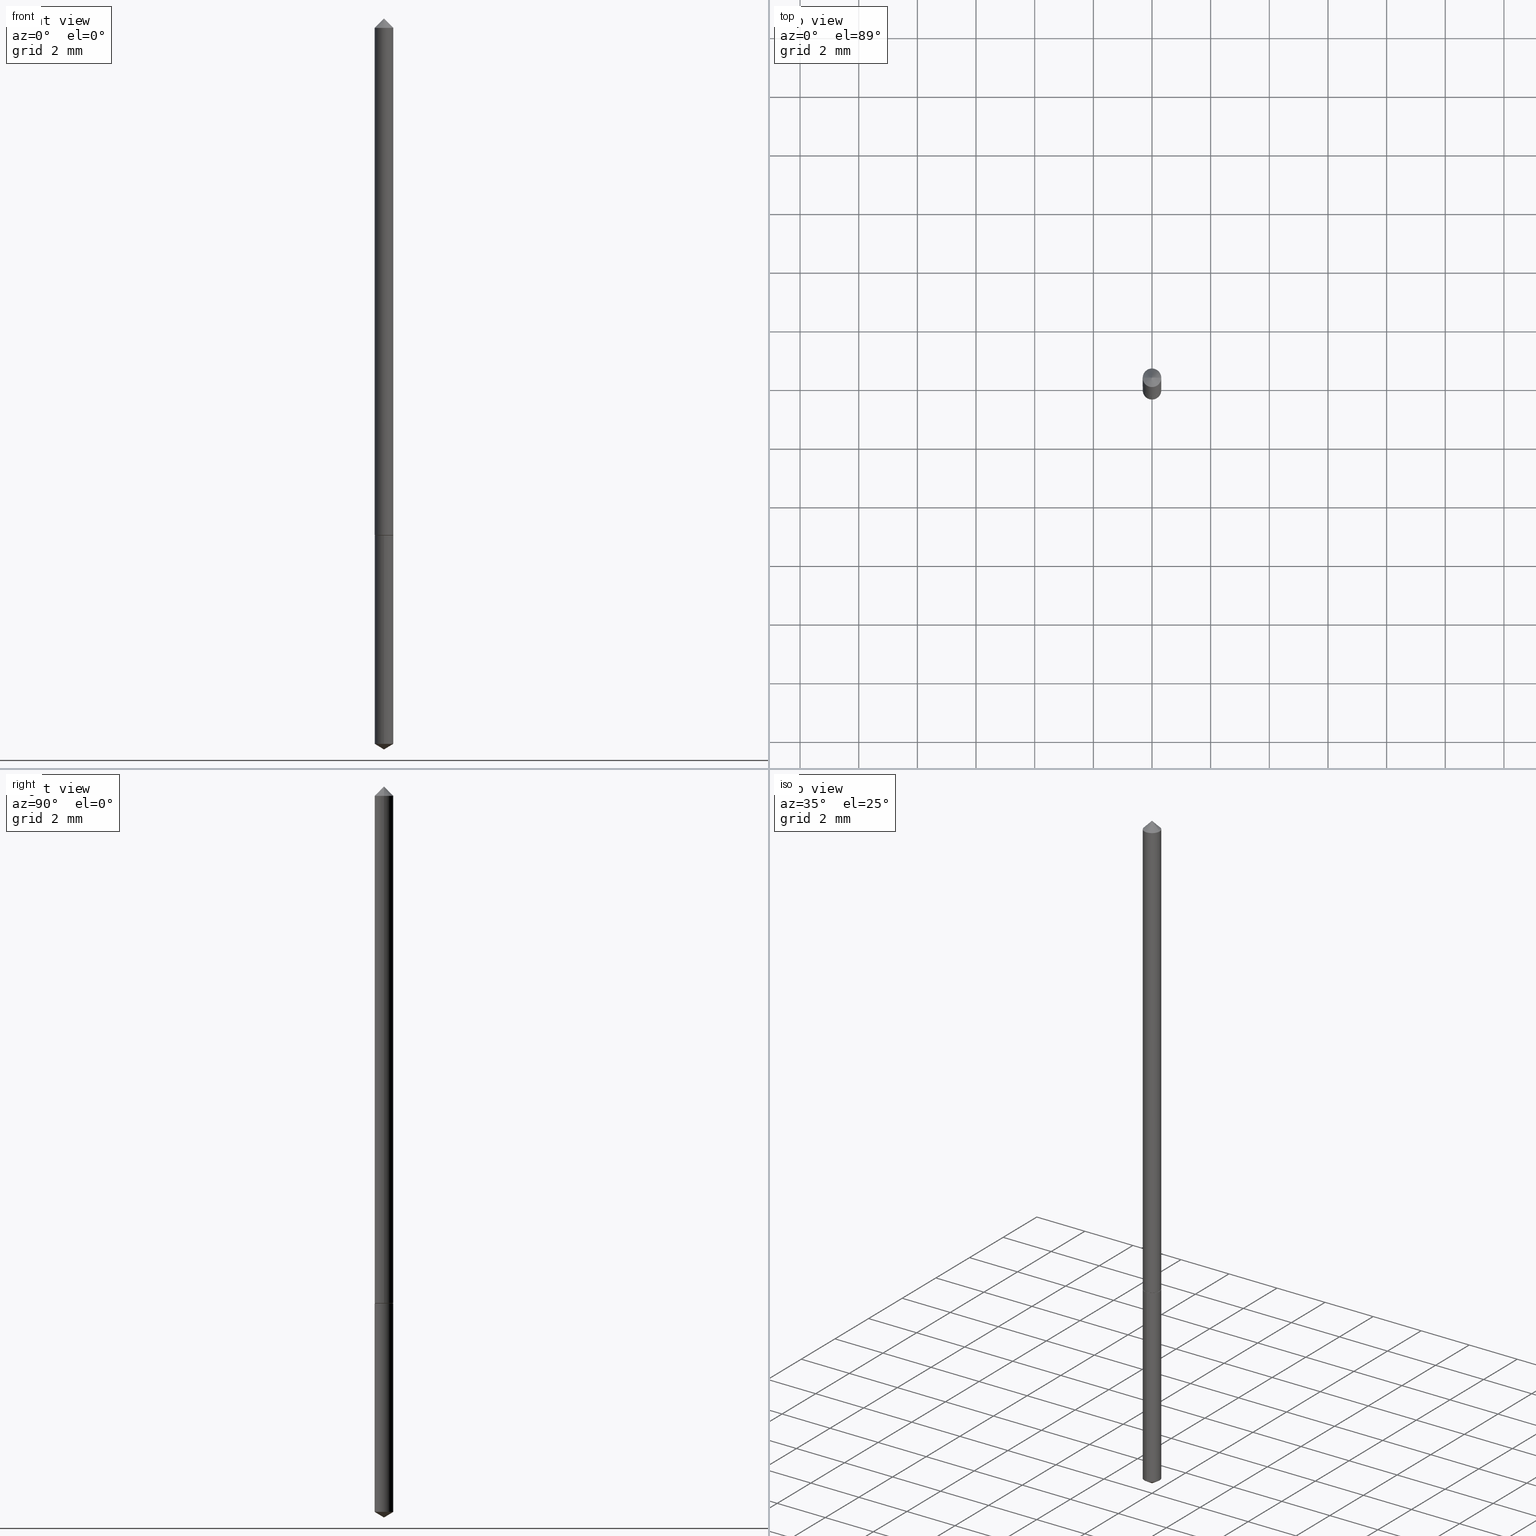
[diagram: canonical four-view strip — front | top / right | iso, engineering-drawing reading convention]
A machine part, canonical four-view strip (front | top / right | iso — engineering-drawing reading convention). The complete STEP part file that produces these views, byte-faithful:
ISO-10303-21;
HEADER;
FILE_DESCRIPTION (( 'STEP AP203' ),
    '1' );
FILE_NAME ('57085.STEP',
    '2024-04-22T21:54:45',
    ( '' ),
    ( '' ),
    'SwSTEP 2.0',
    'SolidWorks 2023',
    '' );
FILE_SCHEMA (( 'CONFIG_CONTROL_DESIGN' ));
ENDSEC;

DATA;
#1 = DATE_TIME_ROLE ( 'classification_date' ) ;
#2 = MECHANICAL_CONTEXT ( 'NONE', #351, 'mechanical' ) ;
#3 = ORIENTED_EDGE ( 'NONE', *, *, #361, .F. ) ;
#4 = VECTOR ( 'NONE', #259, 39.37007874015748143 ) ;
#5 = DIRECTION ( 'NONE',  ( -2.445468806185136597E-29, 3.491481338843145583E-15, 1.000000000000000000 ) ) ;
#6 = CARTESIAN_POINT ( 'NONE',  ( 8.881784197002994473E-17, 0.01249999999999751310, -0.7125000000000000222 ) ) ;
#7 = CARTESIAN_POINT ( 'NONE',  ( 1.741173790003817192E-29, -2.485934713256319295E-15, -0.7119999999999999662 ) ) ;
#8 = CYLINDRICAL_SURFACE ( 'NONE', #153, 0.01250000000000000069 ) ;
#9 = DIRECTION ( 'NONE',  ( -2.445468806185136597E-29, 3.491481338843145583E-15, 1.000000000000000000 ) ) ;
#10 = DIRECTION ( 'NONE',  ( 6.090539988449805257E-15, 0.8571673007021175517, 0.5150380749100452737 ) ) ;
#11 = CARTESIAN_POINT ( 'NONE',  ( 0.01250000000000000590, -1.963958253099273852E-16, -0.03125000000000020123 ) ) ;
#12 = ORIENTED_EDGE ( 'NONE', *, *, #353, .T. ) ;
#13 = VERTEX_POINT ( 'NONE', #296 ) ;
#14 = CIRCLE ( 'NONE', #107, 0.01250000000000000590 ) ;
#15 = ADVANCED_FACE ( 'NONE', ( #29 ), #49, .F. ) ;
#16 = EDGE_LOOP ( 'NONE', ( #73, #154 ) ) ;
#17 = FACE_OUTER_BOUND ( 'NONE', #192, .T. ) ;
#18 = APPLICATION_PROTOCOL_DEFINITION ( 'international standard', 'config_control_design', 1994, #351 ) ;
#19 = ORIENTED_EDGE ( 'NONE', *, *, #164, .T. ) ;
#20 = VECTOR ( 'NONE', #58, 39.37007874015748143 ) ;
#21 = CARTESIAN_POINT ( 'NONE',  ( 1.742396524406909713E-29, -2.487680453925741193E-15, -0.7125000000000000222 ) ) ;
#22 = ORIENTED_EDGE ( 'NONE', *, *, #164, .F. ) ;
#23 = DIRECTION ( 'NONE',  ( 2.445468806185136597E-29, -3.491481338843145583E-15, -1.000000000000000000 ) ) ;
#24 = ADVANCED_FACE ( 'NONE', ( #17 ), #129, .T. ) ;
#25 = DIRECTION ( 'NONE',  ( -2.445468806185136597E-29, 3.491481338843145583E-15, 1.000000000000000000 ) ) ;
#26 = ORIENTED_EDGE ( 'NONE', *, *, #101, .F. ) ;
#27 = FACE_OUTER_BOUND ( 'NONE', #175, .T. ) ;
#28 = APPROVAL ( #138, 'UNSPECIFIED' ) ;
#29 = FACE_OUTER_BOUND ( 'NONE', #16, .T. ) ;
#30 = AXIS2_PLACEMENT_3D ( 'NONE', #274, #23, #133 ) ;
#31 = DESIGN_CONTEXT ( 'detailed design', #197, 'design' ) ;
#32 = CC_DESIGN_DATE_AND_TIME_ASSIGNMENT ( #227, #283, ( #363 ) ) ;
#33 = UNCERTAINTY_MEASURE_WITH_UNIT (LENGTH_MEASURE( 1.000000000000000082E-05 ), #104, 'distance_accuracy_value', 'NONE');
#34 = ORGANIZATION ( 'UNSPECIFIED', 'UNSPECIFIED', '' ) ;
#35 = DIRECTION ( 'NONE',  ( -2.445468806185136597E-29, 3.491481338843145583E-15, 1.000000000000000000 ) ) ;
#36 = DIRECTION ( 'NONE',  ( -2.445488057353773140E-29, 3.491453770073949474E-15, 1.000000000000000000 ) ) ;
#37 = CALENDAR_DATE ( 2024, 22, 4 ) ;
#38 = LINE ( 'NONE', #42, #146 ) ;
#39 = CARTESIAN_POINT ( 'NONE',  ( 1.741173790003817192E-29, -2.485934713256319295E-15, -0.7119999999999999662 ) ) ;
#40 = DATE_AND_TIME ( #307, #83 ) ;
#41 = CIRCLE ( 'NONE', #285, 0.01250000000000008916 ) ;
#42 = CARTESIAN_POINT ( 'NONE',  ( 2.445460624438465940E-29, -3.491493055570053475E-15, -1.000000000000000000 ) ) ;
#43 = LINE ( 'NONE', #260, #263 ) ;
#44 = EDGE_CURVE ( 'NONE', #360, #143, #221, .T. ) ;
#45 = ORIENTED_EDGE ( 'NONE', *, *, #277, .T. ) ;
#46 = APPLICATION_PROTOCOL_DEFINITION ( 'international standard', 'config_control_design', 1994, #197 ) ;
#47 = DATE_AND_TIME ( #289, #320 ) ;
#48 = CONICAL_SURFACE ( 'NONE', #343, 0.01250000000000008916, 0.7853981633973970977 ) ;
#49 = PLANE ( 'NONE',  #302 ) ;
#50 = DIRECTION ( 'NONE',  ( -2.438088387897960049E-29, 3.491481338843145188E-15, 1.000000000000000000 ) ) ;
#51 = FACE_OUTER_BOUND ( 'NONE', #157, .T. ) ;
#52 = DIRECTION ( 'NONE',  ( -2.445468806185136877E-29, 3.491481338843145188E-15, 1.000000000000000000 ) ) ;
#53 = CARTESIAN_POINT ( 'NONE',  ( 0.000000000000000000, 0.000000000000000000, 0.000000000000000000 ) ) ;
#54 = AXIS2_PLACEMENT_3D ( 'NONE', #235, #90, #204 ) ;
#55 = EDGE_CURVE ( 'NONE', #13, #127, #160, .T. ) ;
#56 = AXIS2_PLACEMENT_3D ( 'NONE', #253, #9, #86 ) ;
#57 = APPROVAL_PERSON_ORGANIZATION ( #311, #310, #150 ) ;
#58 = DIRECTION ( 'NONE',  ( -2.445488057353773140E-29, 3.491453770073949080E-15, 1.000000000000000000 ) ) ;
#59 = ORIENTED_EDGE ( 'NONE', *, *, #44, .F. ) ;
#60 = APPROVAL_ROLE ( '' ) ;
#61 = CARTESIAN_POINT ( 'NONE',  ( -8.728703347106090499E-17, -0.01250000000000249002, -0.7125000000000000222 ) ) ;
#62 = PRODUCT_RELATED_PRODUCT_CATEGORY ( 'detail', '', ( #209 ) ) ;
#63 = LINE ( 'NONE', #6, #20 ) ;
#64 = ORIENTED_EDGE ( 'NONE', *, *, #81, .T. ) ;
#65 = VECTOR ( 'NONE', #287, 39.37007874015748143 ) ;
#66 = ORIENTED_EDGE ( 'NONE', *, *, #149, .F. ) ;
#67 = ORIENTED_EDGE ( 'NONE', *, *, #277, .F. ) ;
#68 = EDGE_CURVE ( 'NONE', #358, #143, #63, .T. ) ;
#69 = AXIS2_PLACEMENT_3D ( 'NONE', #270, #99, #266 ) ;
#70 = PLANE ( 'NONE',  #161 ) ;
#71 = DIRECTION ( 'NONE',  ( 1.000000000000000000, -6.982962677686266711E-15, 4.876176775795936353E-29 ) ) ;
#72 = FACE_OUTER_BOUND ( 'NONE', #297, .T. ) ;
#73 = ORIENTED_EDGE ( 'NONE', *, *, #44, .T. ) ;
#74 = PERSON_AND_ORGANIZATION_ROLE ( 'classification_officer' ) ;
#75 = FACE_OUTER_BOUND ( 'NONE', #299, .T. ) ;
#76 = ORIENTED_EDGE ( 'NONE', *, *, #120, .F. ) ;
#77 = CYLINDRICAL_SURFACE ( 'NONE', #318, 0.01250000000000000069 ) ;
#78 = EDGE_CURVE ( 'NONE', #103, #360, #348, .T. ) ;
#79 = AXIS2_PLACEMENT_3D ( 'NONE', #335, #126, #303 ) ;
#80 = EDGE_CURVE ( 'NONE', #322, #352, #229, .T. ) ;
#81 = EDGE_CURVE ( 'NONE', #215, #358, #43, .T. ) ;
#82 = CARTESIAN_POINT ( 'NONE',  ( -0.01250000000000004580, 8.881784197001284864E-17, -6.148668862818655174E-31 ) ) ;
#83 = LOCAL_TIME ( 17, 54, 45.00000000000000000, #174 ) ;
#84 = APPROVAL_PERSON_ORGANIZATION ( #226, #28, #249 ) ;
#85 = CARTESIAN_POINT ( 'NONE',  ( 8.881784197003679796E-17, 0.01249999999999653645, -0.9924892422621556243 ) ) ;
#86 = DIRECTION ( 'NONE',  ( 1.000000000000000000, -6.982962677686272233E-15, 0.000000000000000000 ) ) ;
#87 = EDGE_CURVE ( 'NONE', #358, #103, #105, .T. ) ;
#88 = LINE ( 'NONE', #255, #65 ) ;
#89 = CARTESIAN_POINT ( 'NONE',  ( 0.01250000000000008916, -2.573221746727398418E-15, -0.7119999999999999662 ) ) ;
#90 = DIRECTION ( 'NONE',  ( -2.445488057353773140E-29, 3.491453770073949474E-15, 1.000000000000000000 ) ) ;
#91 = DIRECTION ( 'NONE',  ( -2.445488057353773140E-29, 3.491453770073949474E-15, 1.000000000000000000 ) ) ;
#92 = VERTEX_POINT ( 'NONE', #11 ) ;
#93 = ORIENTED_EDGE ( 'NONE', *, *, #279, .T. ) ;
#94 = ORIENTED_EDGE ( 'NONE', *, *, #251, .F. ) ;
#95 = DIRECTION ( 'NONE',  ( -2.445468806185136597E-29, 3.491481338843145583E-15, 1.000000000000000000 ) ) ;
#96 = CLOSED_SHELL ( 'NONE', ( #156, #166, #219, #202, #324, #217, #170 ) ) ;
#97 = CONICAL_SURFACE ( 'NONE', #130, 0.01250000000000000590, 0.7853981633974449483 ) ;
#98 = CARTESIAN_POINT ( 'NONE',  ( 2.445488057353773421E-29, -3.491453770073949474E-15, -1.000000000000000000 ) ) ;
#99 = DIRECTION ( 'NONE',  ( -2.445488057353773140E-29, 3.491453770073949474E-15, 1.000000000000000000 ) ) ;
#100 = ORIENTED_EDGE ( 'NONE', *, *, #78, .F. ) ;
#101 = EDGE_CURVE ( 'NONE', #352, #92, #342, .T. ) ;
#102 = SHAPE_DEFINITION_REPRESENTATION ( #295, #250 ) ;
#103 = VERTEX_POINT ( 'NONE', #234 ) ;
#104 =( CONVERSION_BASED_UNIT ( 'INCH', #239 ) LENGTH_UNIT ( ) NAMED_UNIT ( #111 ) );
#105 = CIRCLE ( 'NONE', #54, 0.01250000000000000069 ) ;
#106 = CC_DESIGN_APPROVAL ( #310, ( #363 ) ) ;
#107 = AXIS2_PLACEMENT_3D ( 'NONE', #216, #317, #269 ) ;
#108 = APPROVAL_DATE_TIME ( #232, #310 ) ;
#109 = CARTESIAN_POINT ( 'NONE',  ( -0.01250000000000000590, -1.208703910577569624E-15, -0.03125000000000020123 ) ) ;
#110 = CARTESIAN_POINT ( 'NONE',  ( -8.728703347106090499E-17, -0.01250000000000249002, -0.7125000000000000222 ) ) ;
#111 = DIMENSIONAL_EXPONENTS ( 1.000000000000000000, 0.000000000000000000, 0.000000000000000000, 0.000000000000000000, 0.000000000000000000, 0.000000000000000000, 0.000000000000000000 ) ;
#112 = PERSON_AND_ORGANIZATION ( #163, #34 ) ;
#113 = CARTESIAN_POINT ( 'NONE',  ( 2.427106872546543744E-29, -3.465249949402092799E-15, -0.9924892422621556243 ) ) ;
#114 = AXIS2_PLACEMENT_3D ( 'NONE', #39, #330, #323 ) ;
#115 = FACE_OUTER_BOUND ( 'NONE', #292, .T. ) ;
#116 = COORDINATED_UNIVERSAL_TIME_OFFSET ( 5, 0, .BEHIND. ) ;
#117 = DIRECTION ( 'NONE',  ( -6.982962677686265133E-15, -1.000000000000000000, 0.000000000000000000 ) ) ;
#118 = DIRECTION ( 'NONE',  ( 1.000000000000000000, -6.982962677686266711E-15, 0.000000000000000000 ) ) ;
#119 = CARTESIAN_POINT ( 'NONE',  ( 0.01250000000000008916, -2.573221746727398418E-15, -0.7119999999999999662 ) ) ;
#120 = EDGE_CURVE ( 'NONE', #127, #322, #199, .T. ) ;
#121 = DIRECTION ( 'NONE',  ( -6.982962677686267499E-15, -1.000000000000000000, 3.468864327941540966E-15 ) ) ;
#122 = AXIS2_PLACEMENT_3D ( 'NONE', #309, #35, #151 ) ;
#123 = EDGE_CURVE ( 'NONE', #183, #92, #88, .T. ) ;
#124 = SECURITY_CLASSIFICATION_LEVEL ( 'unclassified' ) ;
#125 = ORIENTED_EDGE ( 'NONE', *, *, #353, .F. ) ;
#126 = DIRECTION ( 'NONE',  ( 0.000000000000000000, 0.000000000000000000, 1.000000000000000000 ) ) ;
#127 = VERTEX_POINT ( 'NONE', #261 ) ;
#128 = CC_DESIGN_DATE_AND_TIME_ASSIGNMENT ( #47, #1, ( #136 ) ) ;
#129 = CONICAL_SURFACE ( 'NONE', #355, 65.52281426576944057, 1.029744258676661417 ) ;
#130 = AXIS2_PLACEMENT_3D ( 'NONE', #241, #211, #359 ) ;
#131 = FACE_OUTER_BOUND ( 'NONE', #316, .T. ) ;
#132 = VERTEX_POINT ( 'NONE', #119 ) ;
#133 = DIRECTION ( 'NONE',  ( -1.000000000000000000, 6.982962677686266711E-15, 0.000000000000000000 ) ) ;
#134 = EDGE_LOOP ( 'NONE', ( #158, #276, #22, #66 ) ) ;
#135 = CARTESIAN_POINT ( 'NONE',  ( 1.742396524406909713E-29, -2.487680453925741193E-15, -0.7125000000000000222 ) ) ;
#136 = SECURITY_CLASSIFICATION ( '', '', #124 ) ;
#137 = CC_DESIGN_PERSON_AND_ORGANIZATION_ASSIGNMENT ( #265, #321, ( #201 ) ) ;
#138 = APPROVAL_STATUS ( 'not_yet_approved' ) ;
#139 = ORIENTED_EDGE ( 'NONE', *, *, #78, .T. ) ;
#140 = EDGE_CURVE ( 'NONE', #322, #132, #281, .T. ) ;
#141 = CARTESIAN_POINT ( 'NONE',  ( -0.01250000000000008916, -2.397116871286306299E-15, -0.7119999999999999662 ) ) ;
#142 = DIRECTION ( 'NONE',  ( -6.982962677686265133E-15, -1.000000000000000000, 0.000000000000000000 ) ) ;
#143 = VERTEX_POINT ( 'NONE', #238 ) ;
#144 = PERSON_AND_ORGANIZATION_ROLE ( 'creator' ) ;
#145 = LINE ( 'NONE', #89, #191 ) ;
#146 = VECTOR ( 'NONE', #179, 39.37007874015748854 ) ;
#147 = CARTESIAN_POINT ( 'NONE',  ( -0.01250000000000000590, -2.182175836777064042E-17, -0.03125000000000020123 ) ) ;
#148 = ORIENTED_EDGE ( 'NONE', *, *, #68, .F. ) ;
#149 = EDGE_CURVE ( 'NONE', #132, #92, #182, .T. ) ;
#150 = APPROVAL_ROLE ( '' ) ;
#151 = DIRECTION ( 'NONE',  ( 1.000000000000000000, -6.982962677686272233E-15, 0.000000000000000000 ) ) ;
#152 = APPROVAL ( #200, 'UNSPECIFIED' ) ;
#153 = AXIS2_PLACEMENT_3D ( 'NONE', #313, #91, #176 ) ;
#154 = ORIENTED_EDGE ( 'NONE', *, *, #251, .T. ) ;
#155 =( NAMED_UNIT ( * ) PLANE_ANGLE_UNIT ( ) SI_UNIT ( $, .RADIAN. ) );
#156 = ADVANCED_FACE ( 'NONE', ( #75 ), #97, .T. ) ;
#157 = EDGE_LOOP ( 'NONE', ( #186, #362, #242 ) ) ;
#158 = ORIENTED_EDGE ( 'NONE', *, *, #361, .T. ) ;
#159 = ORIENTED_EDGE ( 'NONE', *, *, #55, .T. ) ;
#160 = CIRCLE ( 'NONE', #56, 0.01200000000000010433 ) ;
#161 = AXIS2_PLACEMENT_3D ( 'NONE', #21, #50, #356 ) ;
#162 = ORIENTED_EDGE ( 'NONE', *, *, #101, .T. ) ;
#163 = PERSON ( 'UNSPECIFIED', 'UNSPECIFIED', 'UNSPECIFIED', ('UNSPECIFIED'), ('UNSPECIFIED'), ('UNSPECIFIED') ) ;
#164 = EDGE_CURVE ( 'NONE', #92, #352, #14, .T. ) ;
#165 = ORIENTED_EDGE ( 'NONE', *, *, #120, .T. ) ;
#166 = ADVANCED_FACE ( 'NONE', ( #354 ), #187, .T. ) ;
#167 = CONICAL_SURFACE ( 'NONE', #69, 65.52281426576944057, 1.029744258676661417 ) ;
#168 = LOCAL_TIME ( 17, 54, 45.00000000000000000, #196 ) ;
#169 =( GEOMETRIC_REPRESENTATION_CONTEXT ( 3 ) GLOBAL_UNCERTAINTY_ASSIGNED_CONTEXT ( ( #33 ) ) GLOBAL_UNIT_ASSIGNED_CONTEXT ( ( #104, #155, #218 ) ) REPRESENTATION_CONTEXT ( 'NONE', 'WORKASPACE' ) );
#170 = ADVANCED_FACE ( 'NONE', ( #27 ), #338, .T. ) ;
#171 = ORIENTED_EDGE ( 'NONE', *, *, #305, .F. ) ;
#172 = CARTESIAN_POINT ( 'NONE',  ( -0.01250000000000008916, -2.397116871286306299E-15, -0.7119999999999999662 ) ) ;
#173 = APPROVAL_STATUS ( 'not_yet_approved' ) ;
#174 = COORDINATED_UNIVERSAL_TIME_OFFSET ( 5, 0, .BEHIND. ) ;
#175 = EDGE_LOOP ( 'NONE', ( #294, #93, #162 ) ) ;
#176 = DIRECTION ( 'NONE',  ( -6.982962677686265133E-15, -1.000000000000000000, 0.000000000000000000 ) ) ;
#177 = DIRECTION ( 'NONE',  ( -2.445468806185136877E-29, 3.491481338843145188E-15, 1.000000000000000000 ) ) ;
#178 = CIRCLE ( 'NONE', #205, 0.01250000000000000069 ) ;
#179 = DIRECTION ( 'NONE',  ( -5.985567269335967312E-15, -0.8571673007021139989, 0.5150380749100511579 ) ) ;
#180 = CC_DESIGN_PERSON_AND_ORGANIZATION_ASSIGNMENT ( #329, #74, ( #136 ) ) ;
#181 = COORDINATED_UNIVERSAL_TIME_OFFSET ( 5, 0, .BEHIND. ) ;
#182 = LINE ( 'NONE', #184, #272 ) ;
#183 = VERTEX_POINT ( 'NONE', #210 ) ;
#184 = CARTESIAN_POINT ( 'NONE',  ( 0.01250000000000004580, -8.728703347107865436E-17, 6.095220969744942512E-31 ) ) ;
#185 = DIRECTION ( 'NONE',  ( 1.000000000000000000, -6.982962677686283277E-15, 0.000000000000000000 ) ) ;
#186 = ORIENTED_EDGE ( 'NONE', *, *, #81, .F. ) ;
#187 = CYLINDRICAL_SURFACE ( 'NONE', #240, 0.01250000000000004580 ) ;
#188 = DIRECTION ( 'NONE',  ( -6.982962677686265133E-15, -1.000000000000000000, 0.000000000000000000 ) ) ;
#189 = ADVANCED_FACE ( 'NONE', ( #334 ), #77, .T. ) ;
#190 = VECTOR ( 'NONE', #314, 39.37007874015748143 ) ;
#191 = VECTOR ( 'NONE', #228, 39.37007874015748143 ) ;
#192 = EDGE_LOOP ( 'NONE', ( #245, #64, #125 ) ) ;
#193 = ORIENTED_EDGE ( 'NONE', *, *, #55, .F. ) ;
#194 = MANIFOLD_SOLID_BREP ( 'Body-Move/Copy2[1]', #331 ) ;
#195 = CC_DESIGN_SECURITY_CLASSIFICATION ( #136, ( #201 ) ) ;
#196 = COORDINATED_UNIVERSAL_TIME_OFFSET ( 5, 0, .BEHIND. ) ;
#197 = APPLICATION_CONTEXT ( 'configuration controlled 3d designs of mechanical parts and assemblies' ) ;
#198 = CARTESIAN_POINT ( 'NONE',  ( 7.642090019328601786E-31, -1.091087918388490144E-16, -0.03125000000000020123 ) ) ;
#199 = LINE ( 'NONE', #172, #278 ) ;
#200 = APPROVAL_STATUS ( 'not_yet_approved' ) ;
#201 = PRODUCT_DEFINITION_FORMATION_WITH_SPECIFIED_SOURCE ( 'ANY', '', #209, .NOT_KNOWN. ) ;
#202 = ADVANCED_FACE ( 'NONE', ( #72 ), #70, .F. ) ;
#203 = FACE_OUTER_BOUND ( 'NONE', #271, .T. ) ;
#204 = DIRECTION ( 'NONE',  ( -6.982962677686265133E-15, -1.000000000000000000, 0.000000000000000000 ) ) ;
#205 = AXIS2_PLACEMENT_3D ( 'NONE', #113, #231, #117 ) ;
#206 = CIRCLE ( 'NONE', #213, 0.01250000000000000069 ) ;
#207 = DIRECTION ( 'NONE',  ( -0.7071067811865112684, 7.493145998870223209E-15, 0.7071067811865837660 ) ) ;
#208 = PERSON_AND_ORGANIZATION_ROLE ( 'design_supplier' ) ;
#209 = PRODUCT ( '57085', '57085', '', ( #2 ) ) ;
#210 = CARTESIAN_POINT ( 'NONE',  ( 4.585254011597159495E-31, -6.546527510330939136E-17, -0.01875000000000011727 ) ) ;
#211 = DIRECTION ( 'NONE',  ( 2.445468806185136597E-29, -3.491481338843145583E-15, -1.000000000000000000 ) ) ;
#212 = DIRECTION ( 'NONE',  ( -2.445488057353773140E-29, 3.491453770073949474E-15, 1.000000000000000000 ) ) ;
#213 = AXIS2_PLACEMENT_3D ( 'NONE', #350, #212, #300 ) ;
#214 = CARTESIAN_POINT ( 'NONE',  ( 0.000000000000000000, 0.000000000000000000, 0.000000000000000000 ) ) ;
#215 = VERTEX_POINT ( 'NONE', #98 ) ;
#216 = CARTESIAN_POINT ( 'NONE',  ( 7.642090019328601786E-31, -1.091087918388490144E-16, -0.03125000000000020123 ) ) ;
#217 = ADVANCED_FACE ( 'NONE', ( #131 ), #275, .T. ) ;
#218 =( NAMED_UNIT ( * ) SI_UNIT ( $, .STERADIAN. ) SOLID_ANGLE_UNIT ( ) );
#219 = ADVANCED_FACE ( 'NONE', ( #115 ), #48, .T. ) ;
#220 = ORIENTED_EDGE ( 'NONE', *, *, #305, .T. ) ;
#221 = CIRCLE ( 'NONE', #337, 0.01250000000000000069 ) ;
#222 = AXIS2_PLACEMENT_3D ( 'NONE', #7, #5, #347 ) ;
#223 = CC_DESIGN_APPROVAL ( #28, ( #136 ) ) ;
#224 = ORIENTED_EDGE ( 'NONE', *, *, #140, .T. ) ;
#225 = VECTOR ( 'NONE', #177, 39.37007874015748143 ) ;
#226 = PERSON_AND_ORGANIZATION ( #163, #34 ) ;
#227 = DATE_AND_TIME ( #256, #364 ) ;
#228 = DIRECTION ( 'NONE',  ( 0.7071067811865112684, -2.468850131081876830E-15, 0.7071067811865837660 ) ) ;
#229 = LINE ( 'NONE', #82, #225 ) ;
#230 = AXIS2_PLACEMENT_3D ( 'NONE', #198, #288, #118 ) ;
#231 = DIRECTION ( 'NONE',  ( -2.445488057353773140E-29, 3.491453770073949474E-15, 1.000000000000000000 ) ) ;
#232 = DATE_AND_TIME ( #37, #264 ) ;
#233 = CARTESIAN_POINT ( 'NONE',  ( 1.741173790003817192E-29, -2.485934713256319295E-15, -0.7119999999999999662 ) ) ;
#234 = CARTESIAN_POINT ( 'NONE',  ( -8.728703347105407641E-17, -0.01250000000000346667, -0.9924892422621556243 ) ) ;
#235 = CARTESIAN_POINT ( 'NONE',  ( 2.427106872546543744E-29, -3.465249949402092799E-15, -0.9924892422621556243 ) ) ;
#236 = COORDINATED_UNIVERSAL_TIME_OFFSET ( 5, 0, .BEHIND. ) ;
#237 = ORIENTED_EDGE ( 'NONE', *, *, #279, .F. ) ;
#238 = CARTESIAN_POINT ( 'NONE',  ( 8.881784197003682261E-17, 0.01249999999999751310, -0.7125000000000000222 ) ) ;
#239 = LENGTH_MEASURE_WITH_UNIT ( LENGTH_MEASURE( 0.02539999999999999897 ), #293 );
#240 = AXIS2_PLACEMENT_3D ( 'NONE', #53, #95, #71 ) ;
#241 = CARTESIAN_POINT ( 'NONE',  ( 7.642090019328601786E-31, -1.091087918388490144E-16, -0.03125000000000020123 ) ) ;
#242 = ORIENTED_EDGE ( 'NONE', *, *, #87, .F. ) ;
#243 = ADVANCED_FACE ( 'NONE', ( #51 ), #167, .T. ) ;
#244 = CALENDAR_DATE ( 2024, 22, 4 ) ;
#245 = ORIENTED_EDGE ( 'NONE', *, *, #273, .F. ) ;
#246 = CARTESIAN_POINT ( 'NONE',  ( 1.742396524406909713E-29, -2.487680453925741193E-15, -0.7125000000000000222 ) ) ;
#247 = DIRECTION ( 'NONE',  ( 2.445488057353773140E-29, -3.491453770073949080E-15, -1.000000000000000000 ) ) ;
#248 = APPROVAL_PERSON_ORGANIZATION ( #112, #152, #60 ) ;
#249 = APPROVAL_ROLE ( '' ) ;
#250 = ADVANCED_BREP_SHAPE_REPRESENTATION ( '57085', ( #194, #306, #79 ), #169 ) ;
#251 = EDGE_CURVE ( 'NONE', #143, #360, #206, .T. ) ;
#252 = DIRECTION ( 'NONE',  ( 1.000000000000000000, -6.982962677686266711E-15, 4.876176775795936353E-29 ) ) ;
#253 = CARTESIAN_POINT ( 'NONE',  ( 1.742396524406909713E-29, -2.487680453925741193E-15, -0.7125000000000000222 ) ) ;
#254 = CARTESIAN_POINT ( 'NONE',  ( 1.741173790003817192E-29, -2.485934713256319295E-15, -0.7119999999999999662 ) ) ;
#255 = CARTESIAN_POINT ( 'NONE',  ( 0.01250000000000000590, -1.948650168109932156E-16, -0.03125000000000020123 ) ) ;
#256 = CALENDAR_DATE ( 2024, 22, 4 ) ;
#257 = FACE_OUTER_BOUND ( 'NONE', #327, .T. ) ;
#258 = ADVANCED_FACE ( 'NONE', ( #203 ), #8, .T. ) ;
#259 = DIRECTION ( 'NONE',  ( -0.7071067811865451302, 2.468850131082231817E-15, -0.7071067811865499042 ) ) ;
#260 = CARTESIAN_POINT ( 'NONE',  ( 2.445488297908058255E-29, -3.491453770073949474E-15, -1.000000000000000000 ) ) ;
#261 = CARTESIAN_POINT ( 'NONE',  ( -0.01200000000000010433, -2.399766098460417500E-15, -0.7125000000000000222 ) ) ;
#262 = ORIENTED_EDGE ( 'NONE', *, *, #87, .T. ) ;
#263 = VECTOR ( 'NONE', #10, 39.37007874015748143 ) ;
#264 = LOCAL_TIME ( 17, 54, 45.00000000000000000, #236 ) ;
#265 = PERSON_AND_ORGANIZATION ( #163, #34 ) ;
#266 = DIRECTION ( 'NONE',  ( -6.982962677686267499E-15, -1.000000000000000000, 3.468864327941540966E-15 ) ) ;
#267 = PERSON_AND_ORGANIZATION ( #163, #34 ) ;
#268 = DIRECTION ( 'NONE',  ( 6.982962677686265922E-15, 1.000000000000000000, -3.491453770073949080E-15 ) ) ;
#269 = DIRECTION ( 'NONE',  ( 1.000000000000000000, -6.982962677686266711E-15, 0.000000000000000000 ) ) ;
#270 = CARTESIAN_POINT ( 'NONE',  ( -9.383358303523667431E-28, 1.339673364326090825E-13, 38.37007874015748143 ) ) ;
#271 = EDGE_LOOP ( 'NONE', ( #12, #344, #59, #100 ) ) ;
#272 = VECTOR ( 'NONE', #52, 39.37007874015748143 ) ;
#273 = EDGE_CURVE ( 'NONE', #215, #103, #38, .T. ) ;
#274 = CARTESIAN_POINT ( 'NONE',  ( 7.642090019328601786E-31, -1.091087918388490144E-16, -0.03125000000000020123 ) ) ;
#275 = CYLINDRICAL_SURFACE ( 'NONE', #308, 0.01250000000000004580 ) ;
#276 = ORIENTED_EDGE ( 'NONE', *, *, #80, .T. ) ;
#277 = EDGE_CURVE ( 'NONE', #127, #13, #357, .T. ) ;
#278 = VECTOR ( 'NONE', #207, 39.37007874015748143 ) ;
#279 = EDGE_CURVE ( 'NONE', #183, #352, #286, .T. ) ;
#280 = CC_DESIGN_PERSON_AND_ORGANIZATION_ASSIGNMENT ( #315, #284, ( #209 ) ) ;
#281 = CIRCLE ( 'NONE', #114, 0.01250000000000008916 ) ;
#282 = CARTESIAN_POINT ( 'NONE',  ( 1.742396524406909713E-29, -2.487680453925741193E-15, -0.7125000000000000222 ) ) ;
#283 = DATE_TIME_ROLE ( 'creation_date' ) ;
#284 = PERSON_AND_ORGANIZATION_ROLE ( 'design_owner' ) ;
#285 = AXIS2_PLACEMENT_3D ( 'NONE', #233, #325, #185 ) ;
#286 = LINE ( 'NONE', #147, #4 ) ;
#287 = DIRECTION ( 'NONE',  ( 0.7071067811865451302, -7.319954787623248157E-15, -0.7071067811865499042 ) ) ;
#288 = DIRECTION ( 'NONE',  ( -2.445468806185136597E-29, 3.491481338843145583E-15, 1.000000000000000000 ) ) ;
#289 = CALENDAR_DATE ( 2024, 22, 4 ) ;
#290 = CC_DESIGN_APPROVAL ( #152, ( #201 ) ) ;
#291 = DIRECTION ( 'NONE',  ( 1.000000000000000000, -6.982962677686283277E-15, 0.000000000000000000 ) ) ;
#292 = EDGE_LOOP ( 'NONE', ( #159, #165, #3, #171 ) ) ;
#293 =( LENGTH_UNIT ( ) NAMED_UNIT ( * ) SI_UNIT ( $, .METRE. ) );
#294 = ORIENTED_EDGE ( 'NONE', *, *, #123, .F. ) ;
#295 = PRODUCT_DEFINITION_SHAPE ( 'NONE', 'NONE',  #363 ) ;
#296 = CARTESIAN_POINT ( 'NONE',  ( 0.01200000000000010433, -2.571476006057977309E-15, -0.7125000000000000222 ) ) ;
#297 = EDGE_LOOP ( 'NONE', ( #193, #67 ) ) ;
#298 = EDGE_LOOP ( 'NONE', ( #148, #262, #139, #94 ) ) ;
#299 = EDGE_LOOP ( 'NONE', ( #237, #301, #19 ) ) ;
#300 = DIRECTION ( 'NONE',  ( -6.982962677686265133E-15, -1.000000000000000000, 0.000000000000000000 ) ) ;
#301 = ORIENTED_EDGE ( 'NONE', *, *, #123, .T. ) ;
#302 = AXIS2_PLACEMENT_3D ( 'NONE', #135, #247, #268 ) ;
#303 = DIRECTION ( 'NONE',  ( 1.000000000000000000, 0.000000000000000000, 0.000000000000000000 ) ) ;
#304 = DATE_AND_TIME ( #244, #168 ) ;
#305 = EDGE_CURVE ( 'NONE', #13, #132, #145, .T. ) ;
#306 = MANIFOLD_SOLID_BREP ( 'Body-Move/Copy2[2]', #96 ) ;
#307 = CALENDAR_DATE ( 2024, 22, 4 ) ;
#308 = AXIS2_PLACEMENT_3D ( 'NONE', #214, #326, #252 ) ;
#309 = CARTESIAN_POINT ( 'NONE',  ( 1.742396524406909713E-29, -2.487680453925741193E-15, -0.7125000000000000222 ) ) ;
#310 = APPROVAL ( #173, 'UNSPECIFIED' ) ;
#311 = PERSON_AND_ORGANIZATION ( #163, #34 ) ;
#312 = PERSON_AND_ORGANIZATION ( #163, #34 ) ;
#313 = CARTESIAN_POINT ( 'NONE',  ( 1.742396524406909713E-29, -2.487680453925741193E-15, -0.7125000000000000222 ) ) ;
#314 = DIRECTION ( 'NONE',  ( -2.445488057353773140E-29, 3.491453770073949080E-15, 1.000000000000000000 ) ) ;
#315 = PERSON_AND_ORGANIZATION ( #163, #34 ) ;
#316 = EDGE_LOOP ( 'NONE', ( #341, #224, #319, #26 ) ) ;
#317 = DIRECTION ( 'NONE',  ( -2.445468806185136597E-29, 3.491481338843145583E-15, 1.000000000000000000 ) ) ;
#318 = AXIS2_PLACEMENT_3D ( 'NONE', #246, #349, #188 ) ;
#319 = ORIENTED_EDGE ( 'NONE', *, *, #149, .T. ) ;
#320 = LOCAL_TIME ( 17, 54, 45.00000000000000000, #181 ) ;
#321 = PERSON_AND_ORGANIZATION_ROLE ( 'creator' ) ;
#322 = VERTEX_POINT ( 'NONE', #141 ) ;
#323 = DIRECTION ( 'NONE',  ( 1.000000000000000000, -6.982962677686283277E-15, 0.000000000000000000 ) ) ;
#324 = ADVANCED_FACE ( 'NONE', ( #257 ), #332, .T. ) ;
#325 = DIRECTION ( 'NONE',  ( -2.445468806185136597E-29, 3.491481338843145583E-15, 1.000000000000000000 ) ) ;
#326 = DIRECTION ( 'NONE',  ( -2.445468806185136597E-29, 3.491481338843145583E-15, 1.000000000000000000 ) ) ;
#327 = EDGE_LOOP ( 'NONE', ( #76, #45, #220, #333 ) ) ;
#328 = CARTESIAN_POINT ( 'NONE',  ( -9.383358303523667431E-28, 1.339673364326090825E-13, 38.37007874015748143 ) ) ;
#329 = PERSON_AND_ORGANIZATION ( #163, #34 ) ;
#330 = DIRECTION ( 'NONE',  ( -2.445468806185136597E-29, 3.491481338843145583E-15, 1.000000000000000000 ) ) ;
#331 = CLOSED_SHELL ( 'NONE', ( #258, #24, #243, #189, #15 ) ) ;
#332 = CONICAL_SURFACE ( 'NONE', #222, 0.01250000000000008916, 0.7853981633973970977 ) ;
#333 = ORIENTED_EDGE ( 'NONE', *, *, #140, .F. ) ;
#334 = FACE_OUTER_BOUND ( 'NONE', #298, .T. ) ;
#335 = CARTESIAN_POINT ( 'NONE',  ( 0.000000000000000000, 0.000000000000000000, 0.000000000000000000 ) ) ;
#336 = CC_DESIGN_PERSON_AND_ORGANIZATION_ASSIGNMENT ( #312, #144, ( #363 ) ) ;
#337 = AXIS2_PLACEMENT_3D ( 'NONE', #282, #36, #142 ) ;
#338 = CONICAL_SURFACE ( 'NONE', #30, 0.01250000000000000590, 0.7853981633974449483 ) ;
#339 = CC_DESIGN_PERSON_AND_ORGANIZATION_ASSIGNMENT ( #267, #208, ( #201 ) ) ;
#340 = APPROVAL_DATE_TIME ( #304, #28 ) ;
#341 = ORIENTED_EDGE ( 'NONE', *, *, #80, .F. ) ;
#342 = CIRCLE ( 'NONE', #230, 0.01250000000000000590 ) ;
#343 = AXIS2_PLACEMENT_3D ( 'NONE', #254, #25, #291 ) ;
#344 = ORIENTED_EDGE ( 'NONE', *, *, #68, .T. ) ;
#345 = DIRECTION ( 'NONE',  ( -2.445488057353773140E-29, 3.491453770073949474E-15, 1.000000000000000000 ) ) ;
#346 = APPROVAL_DATE_TIME ( #40, #152 ) ;
#347 = DIRECTION ( 'NONE',  ( 1.000000000000000000, -6.982962677686283277E-15, 0.000000000000000000 ) ) ;
#348 = LINE ( 'NONE', #110, #190 ) ;
#349 = DIRECTION ( 'NONE',  ( -2.445488057353773140E-29, 3.491453770073949474E-15, 1.000000000000000000 ) ) ;
#350 = CARTESIAN_POINT ( 'NONE',  ( 1.742396524406909713E-29, -2.487680453925741193E-15, -0.7125000000000000222 ) ) ;
#351 = APPLICATION_CONTEXT ( 'configuration controlled 3d designs of mechanical parts and assemblies' ) ;
#352 = VERTEX_POINT ( 'NONE', #109 ) ;
#353 = EDGE_CURVE ( 'NONE', #103, #358, #178, .T. ) ;
#354 = FACE_OUTER_BOUND ( 'NONE', #134, .T. ) ;
#355 = AXIS2_PLACEMENT_3D ( 'NONE', #328, #345, #121 ) ;
#356 = DIRECTION ( 'NONE',  ( 1.000000000000000000, -6.982962677686265922E-15, 4.876176775795935793E-29 ) ) ;
#357 = CIRCLE ( 'NONE', #122, 0.01200000000000010433 ) ;
#358 = VERTEX_POINT ( 'NONE', #85 ) ;
#359 = DIRECTION ( 'NONE',  ( -1.000000000000000000, 6.982962677686266711E-15, 0.000000000000000000 ) ) ;
#360 = VERTEX_POINT ( 'NONE', #61 ) ;
#361 = EDGE_CURVE ( 'NONE', #132, #322, #41, .T. ) ;
#362 = ORIENTED_EDGE ( 'NONE', *, *, #273, .T. ) ;
#363 = PRODUCT_DEFINITION ( 'UNKNOWN', '', #201, #31 ) ;
#364 = LOCAL_TIME ( 17, 54, 45.00000000000000000, #116 ) ;
ENDSEC;
END-ISO-10303-21;
